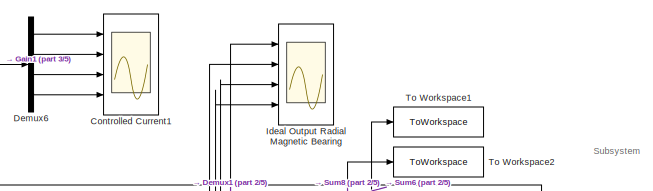
[diagram: root canvas - part 1/5, top center region]
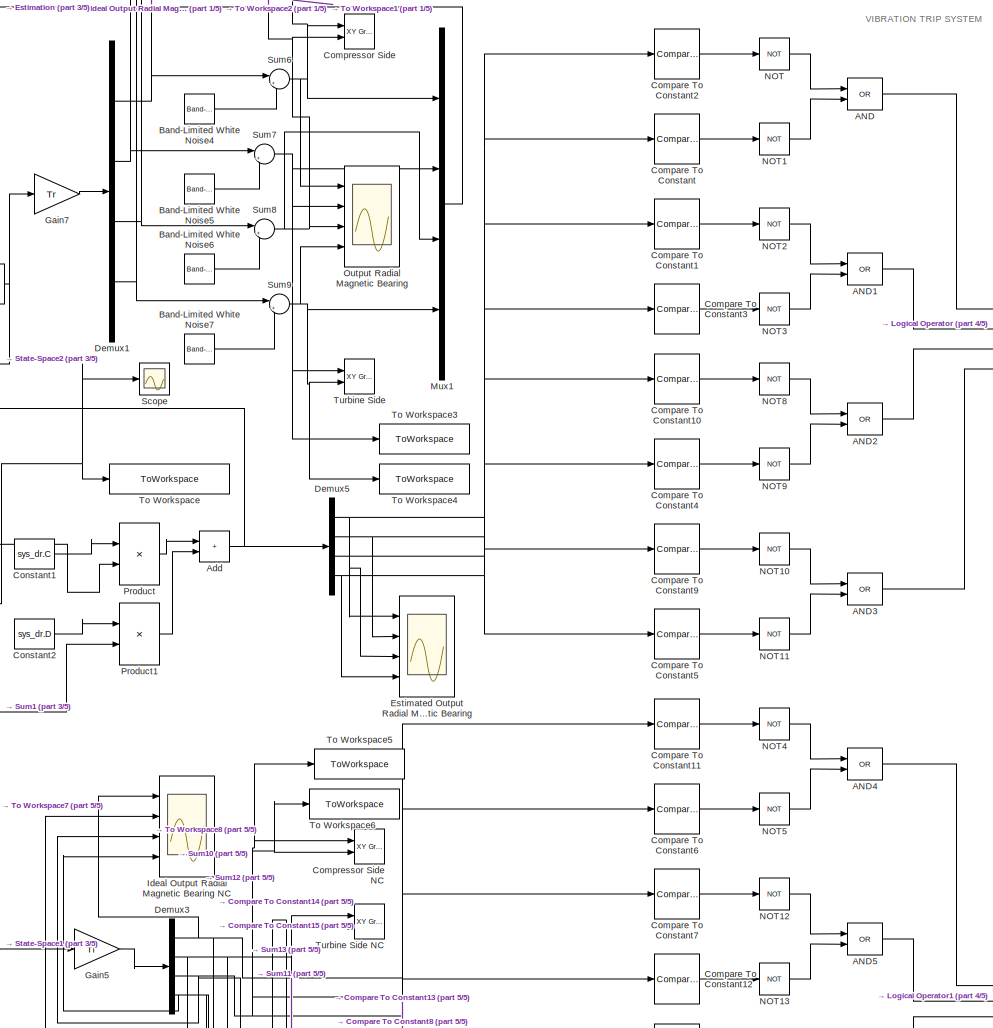
[diagram: root canvas - part 2/5, central region]
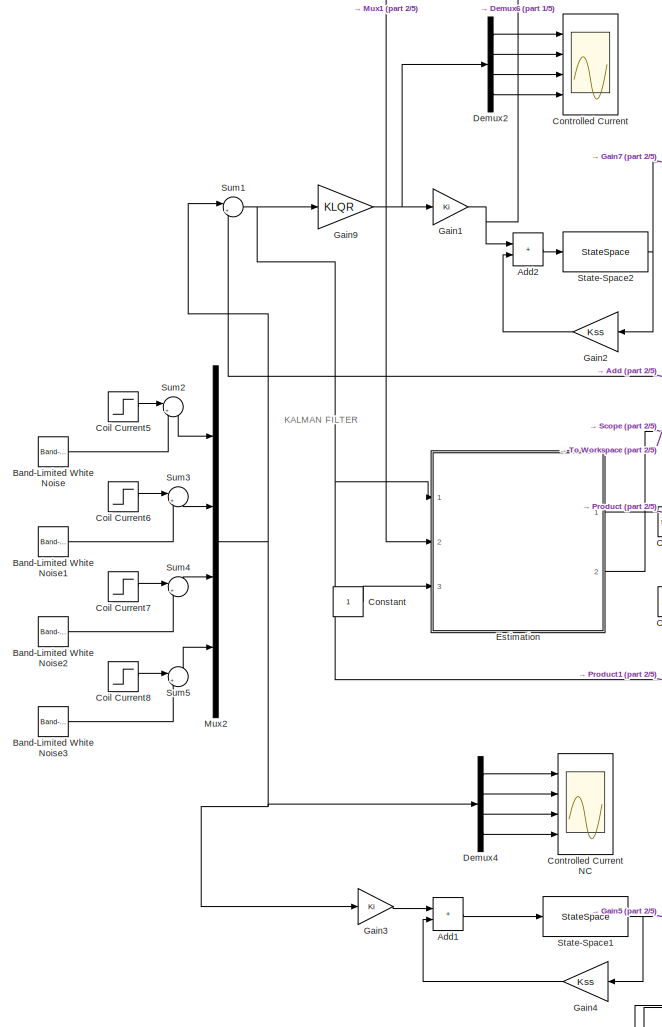
[diagram: root canvas - part 3/5, middle left region]
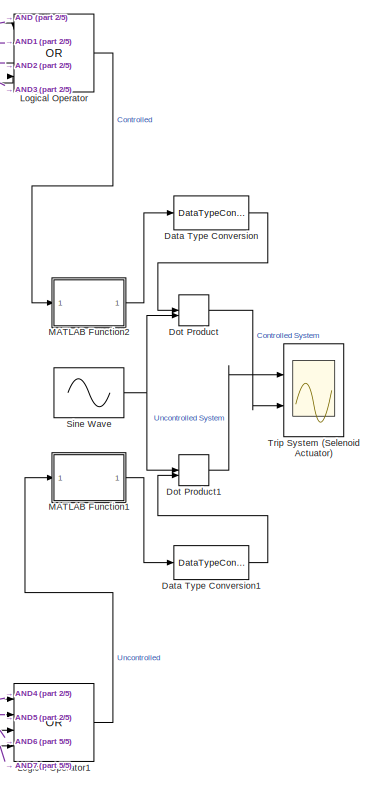
[diagram: root canvas - part 4/5, middle right region]
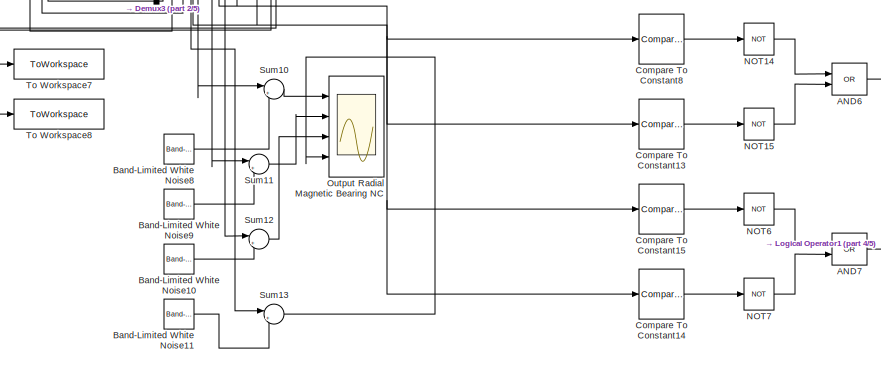
[diagram: root canvas - part 5/5, bottom center region]
MODEL slx_3d02863edbc7
KIND model
CONFIG AbsTol = auto
CONFIG EnableMultiTasking = off
CONFIG FixedStep = auto
CONFIG MaxStep = auto
CONFIG MinStep = auto
CONFIG RelTol = 1e-3
CONFIG SampleTimeConstraint = Unconstrained
CONFIG SolverName = VariableStepAuto
CONFIG StartTime = 0.0
CONFIG StopTime = 5
BLOCK [Logic] AND
  AllPortsSameDT = off
  IconShape = distinctive
  Operator = OR
  OutDataTypeStr = boolean
  Ports = [2, 1]
BLOCK [Logic] AND1
  AllPortsSameDT = off
  IconShape = distinctive
  Operator = OR
  OutDataTypeStr = boolean
  Ports = [2, 1]
BLOCK [Logic] AND2
  AllPortsSameDT = off
  IconShape = distinctive
  Operator = OR
  OutDataTypeStr = boolean
  Ports = [2, 1]
BLOCK [Logic] AND3
  AllPortsSameDT = off
  IconShape = distinctive
  Operator = OR
  OutDataTypeStr = boolean
  Ports = [2, 1]
BLOCK [Logic] AND4
  AllPortsSameDT = off
  IconShape = distinctive
  Operator = OR
  OutDataTypeStr = boolean
  Ports = [2, 1]
BLOCK [Logic] AND5
  AllPortsSameDT = off
  IconShape = distinctive
  Operator = OR
  OutDataTypeStr = boolean
  Ports = [2, 1]
BLOCK [Logic] AND6
  AllPortsSameDT = off
  IconShape = distinctive
  Operator = OR
  OutDataTypeStr = boolean
  Ports = [2, 1]
BLOCK [Logic] AND7
  AllPortsSameDT = off
  IconShape = distinctive
  Operator = OR
  OutDataTypeStr = boolean
  Ports = [2, 1]
BLOCK [Sum] Add
  IconShape = rectangular
  Ports = [2, 1]
BLOCK [Sum] Add1
  IconShape = rectangular
  Ports = [2, 1]
BLOCK [Sum] Add2
  IconShape = rectangular
  Ports = [2, 1]
BLOCK [Reference] Band-Limited White Noise  REF=simulink/Sources/Band-Limited
White Noise
  Ports = [0, 1]
  SourceBlock = simulink/Sources/Band-Limited\nWhite Noise
  SourceProductBaseCode = SL
  SourceType = Band-Limited White Noise.
BLOCK [Reference] Band-Limited White Noise1  REF=simulink/Sources/Band-Limited
White Noise
  Ports = [0, 1]
  SourceBlock = simulink/Sources/Band-Limited\nWhite Noise
  SourceProductBaseCode = SL
  SourceType = Band-Limited White Noise.
BLOCK [Reference] Band-Limited White Noise10  REF=simulink/Sources/Band-Limited
White Noise
  Ports = [0, 1]
  SourceBlock = simulink/Sources/Band-Limited\nWhite Noise
  SourceProductBaseCode = SL
  SourceType = Band-Limited White Noise.
BLOCK [Reference] Band-Limited White Noise11  REF=simulink/Sources/Band-Limited
White Noise
  Ports = [0, 1]
  SourceBlock = simulink/Sources/Band-Limited\nWhite Noise
  SourceProductBaseCode = SL
  SourceType = Band-Limited White Noise.
BLOCK [Reference] Band-Limited White Noise2  REF=simulink/Sources/Band-Limited
White Noise
  Ports = [0, 1]
  SourceBlock = simulink/Sources/Band-Limited\nWhite Noise
  SourceProductBaseCode = SL
  SourceType = Band-Limited White Noise.
BLOCK [Reference] Band-Limited White Noise3  REF=simulink/Sources/Band-Limited
White Noise
  Ports = [0, 1]
  SourceBlock = simulink/Sources/Band-Limited\nWhite Noise
  SourceProductBaseCode = SL
  SourceType = Band-Limited White Noise.
BLOCK [Reference] Band-Limited White Noise4  REF=simulink/Sources/Band-Limited
White Noise
  Ports = [0, 1]
  SourceBlock = simulink/Sources/Band-Limited\nWhite Noise
  SourceProductBaseCode = SL
  SourceType = Band-Limited White Noise.
BLOCK [Reference] Band-Limited White Noise5  REF=simulink/Sources/Band-Limited
White Noise
  Ports = [0, 1]
  SourceBlock = simulink/Sources/Band-Limited\nWhite Noise
  SourceProductBaseCode = SL
  SourceType = Band-Limited White Noise.
BLOCK [Reference] Band-Limited White Noise6  REF=simulink/Sources/Band-Limited
White Noise
  Ports = [0, 1]
  SourceBlock = simulink/Sources/Band-Limited\nWhite Noise
  SourceProductBaseCode = SL
  SourceType = Band-Limited White Noise.
BLOCK [Reference] Band-Limited White Noise7  REF=simulink/Sources/Band-Limited
White Noise
  Ports = [0, 1]
  SourceBlock = simulink/Sources/Band-Limited\nWhite Noise
  SourceProductBaseCode = SL
  SourceType = Band-Limited White Noise.
BLOCK [Reference] Band-Limited White Noise8  REF=simulink/Sources/Band-Limited
White Noise
  Ports = [0, 1]
  SourceBlock = simulink/Sources/Band-Limited\nWhite Noise
  SourceProductBaseCode = SL
  SourceType = Band-Limited White Noise.
BLOCK [Reference] Band-Limited White Noise9  REF=simulink/Sources/Band-Limited
White Noise
  Ports = [0, 1]
  SourceBlock = simulink/Sources/Band-Limited\nWhite Noise
  SourceProductBaseCode = SL
  SourceType = Band-Limited White Noise.
BLOCK [Step] Coil Current5
  After = 10^-9
  SampleTime = 0
BLOCK [Step] Coil Current6
  After = 10^-9
  SampleTime = 0
BLOCK [Step] Coil Current7
  After = 10^-9
  SampleTime = 0
BLOCK [Step] Coil Current8
  After = 10^-9
  SampleTime = 0
  Time = 30
BLOCK [Reference] Compare To Constant  REF=simulink/Logic and Bit
Operations/Compare
To Constant
  Ports = [1, 1]
  SourceBlock = simulink/Logic and Bit\nOperations/Compare\nTo Constant
  SourceProductBaseCode = SL
  SourceType = Compare To Constant
BLOCK [Reference] Compare To Constant1  REF=simulink/Logic and Bit
Operations/Compare
To Constant
  Ports = [1, 1]
  SourceBlock = simulink/Logic and Bit\nOperations/Compare\nTo Constant
  SourceProductBaseCode = SL
  SourceType = Compare To Constant
BLOCK [Reference] Compare To Constant10  REF=simulink/Logic and Bit
Operations/Compare
To Constant
  Ports = [1, 1]
  SourceBlock = simulink/Logic and Bit\nOperations/Compare\nTo Constant
  SourceProductBaseCode = SL
  SourceType = Compare To Constant
BLOCK [Reference] Compare To Constant11  REF=simulink/Logic and Bit
Operations/Compare
To Constant
  Ports = [1, 1]
  SourceBlock = simulink/Logic and Bit\nOperations/Compare\nTo Constant
  SourceProductBaseCode = SL
  SourceType = Compare To Constant
BLOCK [Reference] Compare To Constant12  REF=simulink/Logic and Bit
Operations/Compare
To Constant
  Ports = [1, 1]
  SourceBlock = simulink/Logic and Bit\nOperations/Compare\nTo Constant
  SourceProductBaseCode = SL
  SourceType = Compare To Constant
BLOCK [Reference] Compare To Constant13  REF=simulink/Logic and Bit
Operations/Compare
To Constant
  Ports = [1, 1]
  SourceBlock = simulink/Logic and Bit\nOperations/Compare\nTo Constant
  SourceProductBaseCode = SL
  SourceType = Compare To Constant
BLOCK [Reference] Compare To Constant14  REF=simulink/Logic and Bit
Operations/Compare
To Constant
  Ports = [1, 1]
  SourceBlock = simulink/Logic and Bit\nOperations/Compare\nTo Constant
  SourceProductBaseCode = SL
  SourceType = Compare To Constant
BLOCK [Reference] Compare To Constant15  REF=simulink/Logic and Bit
Operations/Compare
To Constant
  Ports = [1, 1]
  SourceBlock = simulink/Logic and Bit\nOperations/Compare\nTo Constant
  SourceProductBaseCode = SL
  SourceType = Compare To Constant
BLOCK [Reference] Compare To Constant2  REF=simulink/Logic and Bit
Operations/Compare
To Constant
  Ports = [1, 1]
  SourceBlock = simulink/Logic and Bit\nOperations/Compare\nTo Constant
  SourceProductBaseCode = SL
  SourceType = Compare To Constant
BLOCK [Reference] Compare To Constant3  REF=simulink/Logic and Bit
Operations/Compare
To Constant
  Ports = [1, 1]
  SourceBlock = simulink/Logic and Bit\nOperations/Compare\nTo Constant
  SourceProductBaseCode = SL
  SourceType = Compare To Constant
BLOCK [Reference] Compare To Constant4  REF=simulink/Logic and Bit
Operations/Compare
To Constant
  Ports = [1, 1]
  SourceBlock = simulink/Logic and Bit\nOperations/Compare\nTo Constant
  SourceProductBaseCode = SL
  SourceType = Compare To Constant
BLOCK [Reference] Compare To Constant5  REF=simulink/Logic and Bit
Operations/Compare
To Constant
  Ports = [1, 1]
  SourceBlock = simulink/Logic and Bit\nOperations/Compare\nTo Constant
  SourceProductBaseCode = SL
  SourceType = Compare To Constant
BLOCK [Reference] Compare To Constant6  REF=simulink/Logic and Bit
Operations/Compare
To Constant
  Ports = [1, 1]
  SourceBlock = simulink/Logic and Bit\nOperations/Compare\nTo Constant
  SourceProductBaseCode = SL
  SourceType = Compare To Constant
BLOCK [Reference] Compare To Constant7  REF=simulink/Logic and Bit
Operations/Compare
To Constant
  Ports = [1, 1]
  SourceBlock = simulink/Logic and Bit\nOperations/Compare\nTo Constant
  SourceProductBaseCode = SL
  SourceType = Compare To Constant
BLOCK [Reference] Compare To Constant8  REF=simulink/Logic and Bit
Operations/Compare
To Constant
  Ports = [1, 1]
  SourceBlock = simulink/Logic and Bit\nOperations/Compare\nTo Constant
  SourceProductBaseCode = SL
  SourceType = Compare To Constant
BLOCK [Reference] Compare To Constant9  REF=simulink/Logic and Bit
Operations/Compare
To Constant
  Ports = [1, 1]
  SourceBlock = simulink/Logic and Bit\nOperations/Compare\nTo Constant
  SourceProductBaseCode = SL
  SourceType = Compare To Constant
BLOCK [Reference] Compressor Side   REF=simulink/Sinks/XY Graph
  Ports = [2]
  SourceBlock = simulink/Sinks/XY Graph
  SourceProductBaseCode = SL
  SourceType = XY scope.
BLOCK [Reference] Compressor Side NC  REF=simulink/Sinks/XY Graph
  Ports = [2]
  SourceBlock = simulink/Sinks/XY Graph
  SourceProductBaseCode = SL
  SourceType = XY scope.
BLOCK [Constant] Constant
BLOCK [Constant] Constant1
  Value = sys_dr.C
  VectorParams1D = off
BLOCK [Constant] Constant2
  Value = sys_dr.D
  VectorParams1D = off
BLOCK [Scope] Controlled Current
  Floating = off
  NumInputPorts = 4
  Ports = [4]
  ScopeSpecificationString = Simulink.scopes.TimeScopeBlockCfg('CurrentConfiguration', extmgr.ConfigurationSet(extmgr.Configuration('Core','General UI',true),extmgr.Configuration('Core','Source UI',true),extmgr.Configuration('Sources','WiredSimulink',true),extmgr.Configuration('Visuals','Time Domain',true,'SerializedDisplays',{struct('MinYLimReal','-0.22043','MaxYLimReal','0.32246','YLabelReal','','MinYLimMag','0.00000','MaxY...<+3436ch>
BLOCK [Scope] Controlled Current NC
  Floating = off
  NumInputPorts = 4
  Ports = [4]
  ScopeSpecificationString = Simulink.scopes.TimeScopeBlockCfg('CurrentConfiguration', extmgr.ConfigurationSet(extmgr.Configuration('Core','General UI',true),extmgr.Configuration('Core','Source UI',true),extmgr.Configuration('Sources','WiredSimulink',true,'DataLoggingVariableName','ScopeData2'),extmgr.Configuration('Visuals','Time Domain',true,'SerializedDisplays',{struct('MinYLimReal','-1.00134','MaxYLimReal','1.46479','YLab...<+3475ch>
BLOCK [Scope] Controlled Current1
  Floating = off
  NumInputPorts = 4
  Ports = [4]
  ScopeSpecificationString = Simulink.scopes.TimeScopeBlockCfg('CurrentConfiguration', extmgr.ConfigurationSet(extmgr.Configuration('Core','General UI',true),extmgr.Configuration('Core','Source UI',true),extmgr.Configuration('Sources','WiredSimulink',true,'DataLoggingVariableName','ScopeData1'),extmgr.Configuration('Visuals','Time Domain',true,'SerializedDisplays',{struct('MinYLimReal','-127.565','MaxYLimReal','180.94251','YL...<+3488ch>
BLOCK [DataTypeConversion] Data Type Conversion
  RndMeth = Floor
  SaturateOnIntegerOverflow = off
BLOCK [DataTypeConversion] Data Type Conversion1
  RndMeth = Floor
  SaturateOnIntegerOverflow = off
BLOCK [Demux] Demux1
  Ports = [1, 4]
BLOCK [Demux] Demux2
  Ports = [1, 4]
BLOCK [Demux] Demux3
  Ports = [1, 4]
BLOCK [Demux] Demux4
  Ports = [1, 4]
BLOCK [Demux] Demux5
  Ports = [1, 4]
BLOCK [Demux] Demux6
  Ports = [1, 4]
BLOCK [DotProduct] Dot Product
  OutDataTypeStr = Inherit: Inherit via internal rule
BLOCK [DotProduct] Dot Product1
  OutDataTypeStr = Inherit: Inherit via internal rule
BLOCK [Scope] Estimated Output Radial Magnetic Bearing
  Floating = off
  NumInputPorts = 4
  Ports = [4]
  ScopeSpecificationString = Simulink.scopes.TimeScopeBlockCfg('CurrentConfiguration', extmgr.ConfigurationSet(extmgr.Configuration('Core','General UI',true),extmgr.Configuration('Core','Source UI',true),extmgr.Configuration('Sources','WiredSimulink',true,'DataLoggingVariableName','ScopeData5'),extmgr.Configuration('Visuals','Time Domain',true,'SerializedDisplays',{struct('MinYLimReal','-0.0000019','MaxYLimReal','0.0000023','...<+3492ch>
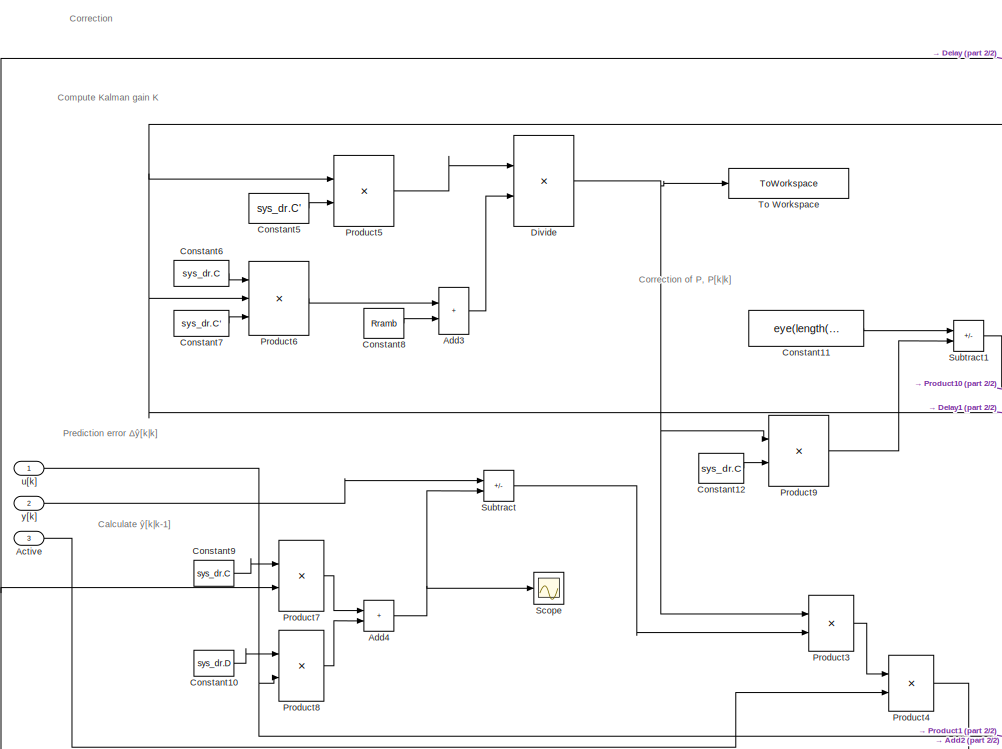
[diagram: Estimation - part 1/2, left side, full height]
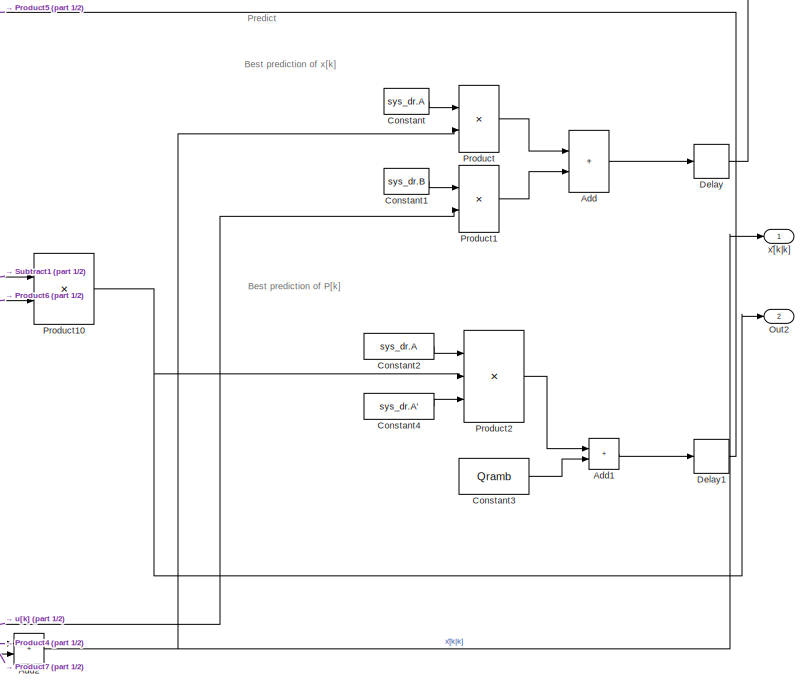
[diagram: Estimation - part 2/2, right side, full height]
BLOCK [SubSystem] Estimation
  Ports = [3, 2]
  RequestExecContextInheritance = off
BLOCK [Inport] Estimation/Active
  Port = 3
BLOCK [Sum] Estimation/Add
  IconShape = rectangular
  Ports = [2, 1]
BLOCK [Sum] Estimation/Add1
  IconShape = rectangular
  Ports = [2, 1]
BLOCK [Sum] Estimation/Add2
  IconShape = rectangular
  Ports = [2, 1]
BLOCK [Sum] Estimation/Add3
  IconShape = rectangular
  Ports = [2, 1]
BLOCK [Sum] Estimation/Add4
  IconShape = rectangular
  Ports = [2, 1]
BLOCK [Constant] Estimation/Constant
  Value = sys_dr.A
  VectorParams1D = off
BLOCK [Constant] Estimation/Constant1
  Value = sys_dr.B
  VectorParams1D = off
BLOCK [Constant] Estimation/Constant10
  Value = sys_dr.D
  VectorParams1D = off
BLOCK [Constant] Estimation/Constant11
  Value = eye(length(sys_dr.C))
  VectorParams1D = off
BLOCK [Constant] Estimation/Constant12
  Value = sys_dr.C
  VectorParams1D = off
BLOCK [Constant] Estimation/Constant2
  Value = sys_dr.A
  VectorParams1D = off
BLOCK [Constant] Estimation/Constant3
  Value = Qramb
  VectorParams1D = off
BLOCK [Constant] Estimation/Constant4
  Value = sys_dr.A'
  VectorParams1D = off
BLOCK [Constant] Estimation/Constant5
  Value = sys_dr.C'
  VectorParams1D = off
BLOCK [Constant] Estimation/Constant6
  Value = sys_dr.C
  VectorParams1D = off
BLOCK [Constant] Estimation/Constant7
  Value = sys_dr.C'
  VectorParams1D = off
BLOCK [Constant] Estimation/Constant8
  Value = Rramb
  VectorParams1D = off
BLOCK [Constant] Estimation/Constant9
  Value = sys_dr.C
  VectorParams1D = off
BLOCK [Delay] Estimation/Delay
  DelayLength = 1
  InitialCondition = x0ramb
  InputPortMap = u0
  Ports = [1, 1]
BLOCK [Delay] Estimation/Delay1
  DelayLength = 1
  InitialCondition = P0ramb
  InputPortMap = u0
  Ports = [1, 1]
BLOCK [Product] Estimation/Divide
  Inputs = */
  Multiplication = Matrix(*)
  Ports = [2, 1]
BLOCK [Outport] Estimation/Out2
  Port = 2
BLOCK [Product] Estimation/Product
  Multiplication = Matrix(*)
  Ports = [2, 1]
BLOCK [Product] Estimation/Product1
  Multiplication = Matrix(*)
  Ports = [2, 1]
BLOCK [Product] Estimation/Product10
  Multiplication = Matrix(*)
  Ports = [2, 1]
BLOCK [Product] Estimation/Product2
  Inputs = 3
  Multiplication = Matrix(*)
  Ports = [3, 1]
BLOCK [Product] Estimation/Product3
  Multiplication = Matrix(*)
  Ports = [2, 1]
BLOCK [Product] Estimation/Product4
  Multiplication = Matrix(*)
  Ports = [2, 1]
BLOCK [Product] Estimation/Product5
  Multiplication = Matrix(*)
  Ports = [2, 1]
BLOCK [Product] Estimation/Product6
  Inputs = 3
  Multiplication = Matrix(*)
  Ports = [3, 1]
BLOCK [Product] Estimation/Product7
  Multiplication = Matrix(*)
  Ports = [2, 1]
BLOCK [Product] Estimation/Product8
  Multiplication = Matrix(*)
  Ports = [2, 1]
BLOCK [Product] Estimation/Product9
  Multiplication = Matrix(*)
  Ports = [2, 1]
BLOCK [Scope] Estimation/Scope
  Floating = off
  NumInputPorts = 1
  Ports = [1]
  ScopeSpecificationString = Simulink.scopes.TimeScopeBlockCfg('CurrentConfiguration', extmgr.ConfigurationSet(extmgr.Configuration('Core','General UI',true),extmgr.Configuration('Core','Source UI',true),extmgr.Configuration('Sources','WiredSimulink',true,'DataLoggingVariableName','ScopeData2'),extmgr.Configuration('Visuals','Time Domain',true,'SerializedDisplays',{struct('MinYLimReal','-244.28559','MaxYLimReal','99.36507','Y...<+1418ch>
BLOCK [Sum] Estimation/Subtract
  IconShape = rectangular
  Inputs = +-
  Ports = [2, 1]
BLOCK [Sum] Estimation/Subtract1
  IconShape = rectangular
  Inputs = +-
  Ports = [2, 1]
BLOCK [ToWorkspace] Estimation/To Workspace
  FixptAsFi = on
  MaxDataPoints = 1
  Ports = [1]
  SampleTime = -1
  VariableName = kalman_gain_rmb
BLOCK [Inport] Estimation/u[k]
BLOCK [Outport] Estimation/x̂[k|k]
BLOCK [Inport] Estimation/y[k]
  Port = 2
BLOCK [Gain] Gain1
  Gain = Ki
  Multiplication = Matrix(K*u)
BLOCK [Gain] Gain2
  Gain = Kss
  Multiplication = Matrix(K*u)
  NameLocation = top
BLOCK [Gain] Gain3
  Gain = Ki
  Multiplication = Matrix(K*u)
BLOCK [Gain] Gain4
  Gain = Kss
  Multiplication = Matrix(K*u)
  NameLocation = top
BLOCK [Gain] Gain5
  Gain = Tr
  Multiplication = Matrix(K*u)
BLOCK [Gain] Gain7
  Gain = Tr
  Multiplication = Matrix(K*u)
BLOCK [Gain] Gain9
  Gain = KLQR
  Multiplication = Matrix(K*u)
BLOCK [Scope] Ideal Output Radial Magnetic Bearing
  Floating = off
  NumInputPorts = 4
  Ports = [4]
  ScopeSpecificationString = Simulink.scopes.TimeScopeBlockCfg('CurrentConfiguration', extmgr.ConfigurationSet(extmgr.Configuration('Core','General UI',true),extmgr.Configuration('Core','Source UI',true),extmgr.Configuration('Sources','WiredSimulink',true,'DataLoggingVariableName','ScopeData1'),extmgr.Configuration('Visuals','Time Domain',true,'SerializedDisplays',{struct('MinYLimReal','-0.0000011','MaxYLimReal','0.0000011','...<+3492ch>
BLOCK [Scope] Ideal Output Radial Magnetic Bearing NC
  Floating = off
  NumInputPorts = 4
  Ports = [4]
  ScopeSpecificationString = Simulink.scopes.TimeScopeBlockCfg('CurrentConfiguration', extmgr.ConfigurationSet(extmgr.Configuration('Core','General UI',true),extmgr.Configuration('Core','Source UI',true),extmgr.Configuration('Sources','WiredSimulink',true,'DataLoggingVariableName','ScopeData2'),extmgr.Configuration('Visuals','Time Domain',true,'SerializedDisplays',{struct('MinYLimReal','-0.00001','MaxYLimReal','0.000011','YLa...<+3484ch>
BLOCK [Logic] Logical Operator
  AllPortsSameDT = off
  IconShape = distinctive
  Inputs = 4
  Operator = OR
  OutDataTypeStr = boolean
  Ports = [4, 1]
BLOCK [Logic] Logical Operator1
  AllPortsSameDT = off
  IconShape = distinctive
  Inputs = 4
  Operator = OR
  OutDataTypeStr = boolean
  Ports = [4, 1]
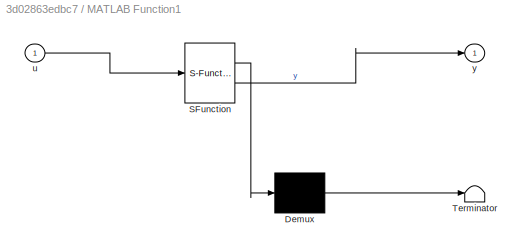
BLOCK [SubSystem] MATLAB Function1
  ErrorFcn = Stateflow.Translate.translate
  PermitHierarchicalResolution = ExplicitOnly
  Ports = [1, 1]
  RequestExecContextInheritance = off
  SFBlockType = MATLAB Function
  TreatAsAtomicUnit = on
BLOCK [Demux] MATLAB Function1/ Demux 
  Outputs = 1
  Ports = [1, 1]
BLOCK [S-Function] MATLAB Function1/ SFunction 
  EnableBusSupport = on
  FunctionName = sf_sfun
  PortCounts = [1 2]
  Ports = [1, 2]
  SFcnIsStateOwnerBlock = off
  SFunctionDeploymentMode = off
  Tag = Stateflow S-Function 1
BLOCK [Terminator] MATLAB Function1/ Terminator 
BLOCK [Inport] MATLAB Function1/u
BLOCK [Outport] MATLAB Function1/y
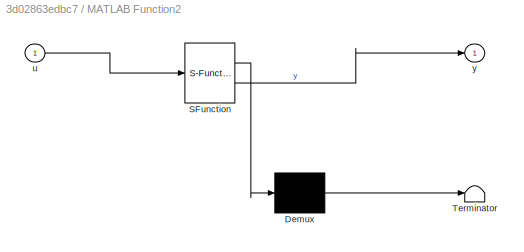
BLOCK [SubSystem] MATLAB Function2
  ErrorFcn = Stateflow.Translate.translate
  PermitHierarchicalResolution = ExplicitOnly
  Ports = [1, 1]
  RequestExecContextInheritance = off
  SFBlockType = MATLAB Function
  TreatAsAtomicUnit = on
BLOCK [Demux] MATLAB Function2/ Demux 
  Outputs = 1
  Ports = [1, 1]
BLOCK [S-Function] MATLAB Function2/ SFunction 
  EnableBusSupport = on
  FunctionName = sf_sfun
  PortCounts = [1 2]
  Ports = [1, 2]
  SFcnIsStateOwnerBlock = off
  SFunctionDeploymentMode = off
  Tag = Stateflow S-Function 2
BLOCK [Terminator] MATLAB Function2/ Terminator 
BLOCK [Inport] MATLAB Function2/u
BLOCK [Outport] MATLAB Function2/y
BLOCK [Mux] Mux1
  DisplayOption = bar
  Ports = [4, 1]
BLOCK [Mux] Mux2
  DisplayOption = bar
  Ports = [4, 1]
BLOCK [Logic] NOT
  AllPortsSameDT = off
  IconShape = distinctive
  Operator = NOT
  OutDataTypeStr = boolean
  Ports = [1, 1]
BLOCK [Logic] NOT1
  AllPortsSameDT = off
  IconShape = distinctive
  Operator = NOT
  OutDataTypeStr = boolean
  Ports = [1, 1]
BLOCK [Logic] NOT10
  AllPortsSameDT = off
  IconShape = distinctive
  Operator = NOT
  OutDataTypeStr = boolean
  Ports = [1, 1]
BLOCK [Logic] NOT11
  AllPortsSameDT = off
  IconShape = distinctive
  Operator = NOT
  OutDataTypeStr = boolean
  Ports = [1, 1]
BLOCK [Logic] NOT12
  AllPortsSameDT = off
  IconShape = distinctive
  Operator = NOT
  OutDataTypeStr = boolean
  Ports = [1, 1]
BLOCK [Logic] NOT13
  AllPortsSameDT = off
  IconShape = distinctive
  Operator = NOT
  OutDataTypeStr = boolean
  Ports = [1, 1]
BLOCK [Logic] NOT14
  AllPortsSameDT = off
  IconShape = distinctive
  Operator = NOT
  OutDataTypeStr = boolean
  Ports = [1, 1]
BLOCK [Logic] NOT15
  AllPortsSameDT = off
  IconShape = distinctive
  Operator = NOT
  OutDataTypeStr = boolean
  Ports = [1, 1]
BLOCK [Logic] NOT2
  AllPortsSameDT = off
  IconShape = distinctive
  Operator = NOT
  OutDataTypeStr = boolean
  Ports = [1, 1]
BLOCK [Logic] NOT3
  AllPortsSameDT = off
  IconShape = distinctive
  Operator = NOT
  OutDataTypeStr = boolean
  Ports = [1, 1]
BLOCK [Logic] NOT4
  AllPortsSameDT = off
  IconShape = distinctive
  Operator = NOT
  OutDataTypeStr = boolean
  Ports = [1, 1]
BLOCK [Logic] NOT5
  AllPortsSameDT = off
  IconShape = distinctive
  Operator = NOT
  OutDataTypeStr = boolean
  Ports = [1, 1]
BLOCK [Logic] NOT6
  AllPortsSameDT = off
  IconShape = distinctive
  Operator = NOT
  OutDataTypeStr = boolean
  Ports = [1, 1]
BLOCK [Logic] NOT7
  AllPortsSameDT = off
  IconShape = distinctive
  Operator = NOT
  OutDataTypeStr = boolean
  Ports = [1, 1]
BLOCK [Logic] NOT8
  AllPortsSameDT = off
  IconShape = distinctive
  Operator = NOT
  OutDataTypeStr = boolean
  Ports = [1, 1]
BLOCK [Logic] NOT9
  AllPortsSameDT = off
  IconShape = distinctive
  Operator = NOT
  OutDataTypeStr = boolean
  Ports = [1, 1]
BLOCK [Scope] Output Radial Magnetic Bearing
  Floating = off
  NumInputPorts = 4
  Ports = [4]
  ScopeSpecificationString = Simulink.scopes.TimeScopeBlockCfg('CurrentConfiguration', extmgr.ConfigurationSet(extmgr.Configuration('Core','General UI',true),extmgr.Configuration('Core','Source UI',true),extmgr.Configuration('Sources','WiredSimulink',true,'DataLoggingVariableName','ScopeData1'),extmgr.Configuration('Visuals','Time Domain',true,'SerializedDisplays',{struct('MinYLimReal','-37773114950855271405149326988140777200...<+3961ch>
BLOCK [Scope] Output Radial Magnetic Bearing NC
  Floating = off
  NumInputPorts = 4
  Ports = [4]
  ScopeSpecificationString = Simulink.scopes.TimeScopeBlockCfg('CurrentConfiguration', extmgr.ConfigurationSet(extmgr.Configuration('Core','General UI',true),extmgr.Configuration('Core','Source UI',true),extmgr.Configuration('Sources','WiredSimulink',true,'DataLoggingVariableName','ScopeData3'),extmgr.Configuration('Visuals','Time Domain',true,'SerializedDisplays',{struct('MinYLimReal','-0.00011','MaxYLimReal','0.00011','YLab...<+3463ch>
BLOCK [Product] Product
  Multiplication = Matrix(*)
  Ports = [2, 1]
BLOCK [Product] Product1
  Multiplication = Matrix(*)
  Ports = [2, 1]
BLOCK [Scope] Scope
  Floating = off
  NumInputPorts = 1
  Ports = [1]
  ScopeSpecificationString = Simulink.scopes.TimeScopeBlockCfg('CurrentConfiguration', extmgr.ConfigurationSet(extmgr.Configuration('Core','General UI',true),extmgr.Configuration('Core','Source UI',true),extmgr.Configuration('Sources','WiredSimulink',true,'DataLoggingVariableName','ScopeData3'),extmgr.Configuration('Visuals','Time Domain',true,'SerializedDisplays',{struct('MinYLimReal','-12.5','MaxYLimReal','112.5','YLabelRea...<+2513ch>
BLOCK [Sin] Sine Wave
  Amplitude = 220
  Frequency = 60
  Ports = [0, 1]
  SampleTime = 0
BLOCK [StateSpace] State-Space1
  A = Ar
  B = Br
  C = Cr
  D = Dr
  InitialCondition = 0
  Ports = [1, 1]
BLOCK [StateSpace] State-Space2
  A = sys_dr.A
  B = sys_dr.B
  C = sys_dr.C
  ContinuousStateAttributes = 'posisition'
  D = sys_dr.D
  InitialCondition = 10^-7*[1 1 1 1 1 1 1 1]
  Ports = [1, 1]
BLOCK [Sum] Sum1
  Inputs = |+-
  Ports = [2, 1]
BLOCK [Sum] Sum10
  Inputs = |+-
  Ports = [2, 1]
BLOCK [Sum] Sum11
  Inputs = |+-
  Ports = [2, 1]
BLOCK [Sum] Sum12
  Inputs = |+-
  Ports = [2, 1]
BLOCK [Sum] Sum13
  Inputs = |+-
  Ports = [2, 1]
BLOCK [Sum] Sum2
  Inputs = |+-
  Ports = [2, 1]
BLOCK [Sum] Sum3
  Inputs = |+-
  Ports = [2, 1]
BLOCK [Sum] Sum4
  Inputs = |+-
  Ports = [2, 1]
BLOCK [Sum] Sum5
  Inputs = |+-
  Ports = [2, 1]
BLOCK [Sum] Sum6
  Inputs = |+-
  Ports = [2, 1]
BLOCK [Sum] Sum7
  Inputs = |+-
  Ports = [2, 1]
BLOCK [Sum] Sum8
  Inputs = |+-
  Ports = [2, 1]
BLOCK [Sum] Sum9
  Inputs = |+-
  Ports = [2, 1]
BLOCK [ToWorkspace] To Workspace
  FixptAsFi = on
  MaxDataPoints = 1
  Ports = [1]
  SampleTime = -1
  VariableName = system_variance_ramb
BLOCK [ToWorkspace] To Workspace1
  FixptAsFi = on
  MaxDataPoints = inf
  Ports = [1]
  SampleTime = -1
  SaveFormat = Timeseries
  VariableName = xc
BLOCK [ToWorkspace] To Workspace2
  FixptAsFi = on
  MaxDataPoints = inf
  Ports = [1]
  SampleTime = -1
  SaveFormat = Timeseries
  VariableName = yc
BLOCK [ToWorkspace] To Workspace3
  FixptAsFi = on
  MaxDataPoints = inf
  Ports = [1]
  SampleTime = -1
  SaveFormat = Timeseries
  VariableName = xt
BLOCK [ToWorkspace] To Workspace4
  FixptAsFi = on
  MaxDataPoints = inf
  Ports = [1]
  SampleTime = -1
  SaveFormat = Timeseries
  VariableName = yt
BLOCK [ToWorkspace] To Workspace5
  FixptAsFi = on
  MaxDataPoints = inf
  Ports = [1]
  SampleTime = -1
  SaveFormat = Timeseries
  VariableName = xcnc
BLOCK [ToWorkspace] To Workspace6
  FixptAsFi = on
  MaxDataPoints = inf
  Ports = [1]
  SampleTime = -1
  SaveFormat = Timeseries
  VariableName = ycnc
BLOCK [ToWorkspace] To Workspace7
  FixptAsFi = on
  MaxDataPoints = inf
  Ports = [1]
  SampleTime = -1
  SaveFormat = Timeseries
  VariableName = xtnc
BLOCK [ToWorkspace] To Workspace8
  FixptAsFi = on
  MaxDataPoints = inf
  Ports = [1]
  SampleTime = -1
  SaveFormat = Timeseries
  VariableName = ytnc
BLOCK [Scope] Trip System (Selenoid Actuator)
  Floating = off
  NumInputPorts = 2
  Ports = [2]
  ScopeSpecificationString = Simulink.scopes.TimeScopeBlockCfg('CurrentConfiguration', extmgr.ConfigurationSet(extmgr.Configuration('Core','General UI',true),extmgr.Configuration('Core','Source UI',true),extmgr.Configuration('Sources','WiredSimulink',true,'DataLoggingVariableName','ScopeData1'),extmgr.Configuration('Visuals','Time Domain',true,'SerializedDisplays',{struct('MinYLimReal','-274.99994','MaxYLimReal','274.99998','...<+2097ch>
BLOCK [Reference] Turbine Side  REF=simulink/Sinks/XY Graph
  Ports = [2]
  SourceBlock = simulink/Sinks/XY Graph
  SourceProductBaseCode = SL
  SourceType = XY scope.
BLOCK [Reference] Turbine Side NC  REF=simulink/Sinks/XY Graph
  Ports = [2]
  SourceBlock = simulink/Sinks/XY Graph
  SourceProductBaseCode = SL
  SourceType = XY scope.
ANNOTATION (root): VIBRATION TRIP SYSTEM
ANNOTATION (root): KALMAN FILTER
ANNOTATION (root): Subsystem
ANNOTATION Estimation: Best prediction of P[k]
ANNOTATION Estimation: Best prediction of x[k]
ANNOTATION Estimation: Calculate ŷ[k|k-1]
ANNOTATION Estimation: Compute Kalman gain K
ANNOTATION Estimation: Correction
ANNOTATION Estimation: Correction of P, P[k|k]
ANNOTATION Estimation: Predict
ANNOTATION Estimation: Prediction error Δŷ[k|k]
LINE AND1:1 -> Logical Operator:2
LINE AND2:1 -> Logical Operator:3
LINE AND3:1 -> Logical Operator:4
LINE AND4:1 -> Logical Operator1:1
LINE AND5:1 -> Logical Operator1:2
LINE AND6:1 -> Logical Operator1:3
LINE AND7:1 -> Logical Operator1:4
LINE AND:1 -> Logical Operator:1
LINE Add1:1 -> State-Space1:1
LINE Add2:1 -> State-Space2:1
NET Add:1 -> Demux5:1, Sum1:2
LINE Band-Limited White Noise10:1 -> Sum12:2
LINE Band-Limited White Noise11:1 -> Sum13:2
LINE Band-Limited White Noise1:1 -> Sum3:2
LINE Band-Limited White Noise2:1 -> Sum4:2
LINE Band-Limited White Noise3:1 -> Sum5:2
LINE Band-Limited White Noise4:1 -> Sum6:2
LINE Band-Limited White Noise5:1 -> Sum7:2
LINE Band-Limited White Noise6:1 -> Sum8:2
LINE Band-Limited White Noise7:1 -> Sum9:2
LINE Band-Limited White Noise8:1 -> Sum10:2
LINE Band-Limited White Noise9:1 -> Sum11:2
LINE Band-Limited White Noise:1 -> Sum2:2
LINE Coil Current5:1 -> Sum2:1
LINE Coil Current6:1 -> Sum3:1
LINE Coil Current7:1 -> Sum4:1
LINE Coil Current8:1 -> Sum5:1
LINE Compare To Constant10:1 -> NOT8:1
LINE Compare To Constant11:1 -> NOT4:1
LINE Compare To Constant12:1 -> NOT13:1
LINE Compare To Constant13:1 -> NOT15:1
LINE Compare To Constant14:1 -> NOT7:1
LINE Compare To Constant15:1 -> NOT6:1
LINE Compare To Constant1:1 -> NOT2:1
LINE Compare To Constant2:1 -> NOT:1
LINE Compare To Constant3:1 -> NOT3:1
LINE Compare To Constant4:1 -> NOT9:1
LINE Compare To Constant5:1 -> NOT11:1
LINE Compare To Constant6:1 -> NOT5:1
LINE Compare To Constant7:1 -> NOT12:1
LINE Compare To Constant8:1 -> NOT14:1
LINE Compare To Constant9:1 -> NOT10:1
LINE Compare To Constant:1 -> NOT1:1
LINE Constant1:1 -> Product:1
LINE Constant2:1 -> Product1:1
LINE Constant:1 -> Estimation:3
LINE Data Type Conversion1:1 -> Dot Product1:2
LINE Data Type Conversion:1 -> Dot Product:1
NET Demux1:1 -> Ideal Output Radial Magnetic Bearing:1, Sum6:1
NET Demux1:2 -> Ideal Output Radial Magnetic Bearing:2, Sum7:1
NET Demux1:3 -> Ideal Output Radial Magnetic Bearing:3, Sum8:1
NET Demux1:4 -> Ideal Output Radial Magnetic Bearing:4, Sum9:1
LINE Demux2:1 -> Controlled Current:1
LINE Demux2:2 -> Controlled Current:2
LINE Demux2:3 -> Controlled Current:3
LINE Demux2:4 -> Controlled Current:4
NET Demux3:1 -> Compare To Constant11:1, Compare To Constant6:1, Compressor Side NC:1, Ideal Output Radial Magnetic Bearing NC:1, Sum10:1, To Workspace5:1
NET Demux3:2 -> Compare To Constant12:1, Compare To Constant7:1, Ideal Output Radial Magnetic Bearing NC:2, Sum11:1, To Workspace7:1, Turbine Side NC:1
NET Demux3:3 -> Compare To Constant13:1, Compare To Constant8:1, Compressor Side NC:2, Ideal Output Radial Magnetic Bearing NC:3, Sum12:1, To Workspace6:1
NET Demux3:4 -> Compare To Constant14:1, Compare To Constant15:1, Ideal Output Radial Magnetic Bearing NC:4, Sum13:1, To Workspace8:1, Turbine Side NC:2
LINE Demux4:1 -> Controlled Current NC:1
LINE Demux4:2 -> Controlled Current NC:2
LINE Demux4:3 -> Controlled Current NC:3
LINE Demux4:4 -> Controlled Current NC:4
NET Demux5:1 -> Compare To Constant2:1, Compare To Constant:1, Estimated Output Radial Magnetic Bearing:1
NET Demux5:2 -> Compare To Constant1:1, Compare To Constant3:1, Estimated Output Radial Magnetic Bearing:2
NET Demux5:3 -> Compare To Constant10:1, Compare To Constant4:1, Estimated Output Radial Magnetic Bearing:3
NET Demux5:4 -> Compare To Constant5:1, Compare To Constant9:1, Estimated Output Radial Magnetic Bearing:4
LINE Demux6:1 -> Controlled Current1:1
LINE Demux6:2 -> Controlled Current1:2
LINE Demux6:3 -> Controlled Current1:3
LINE Demux6:4 -> Controlled Current1:4
LINE Dot Product1:1 -> Trip System (Selenoid Actuator):1
LINE Dot Product:1 -> Trip System (Selenoid Actuator):2
LINE Estimation/Active:1 -> Estimation/Product4:2
LINE Estimation/Add1:1 -> Estimation/Delay1:1
NET Estimation/Add2:1 -> Estimation/Product:2, Estimation/x̂[k|k]:1
LINE Estimation/Add3:1 -> Estimation/Divide:2
NET Estimation/Add4:1 -> Estimation/Scope:1, Estimation/Subtract:2
LINE Estimation/Add:1 -> Estimation/Delay:1
LINE Estimation/Constant10:1 -> Estimation/Product8:1
LINE Estimation/Constant11:1 -> Estimation/Subtract1:1
LINE Estimation/Constant12:1 -> Estimation/Product9:2
LINE Estimation/Constant1:1 -> Estimation/Product1:1
LINE Estimation/Constant2:1 -> Estimation/Product2:1
LINE Estimation/Constant3:1 -> Estimation/Add1:2
LINE Estimation/Constant4:1 -> Estimation/Product2:3
LINE Estimation/Constant5:1 -> Estimation/Product5:2
LINE Estimation/Constant6:1 -> Estimation/Product6:1
LINE Estimation/Constant7:1 -> Estimation/Product6:3
LINE Estimation/Constant8:1 -> Estimation/Add3:2
LINE Estimation/Constant9:1 -> Estimation/Product7:1
LINE Estimation/Constant:1 -> Estimation/Product:1
NET Estimation/Delay1:1 -> Estimation/Product10:2, Estimation/Product5:1, Estimation/Product6:2
NET Estimation/Delay:1 -> Estimation/Add2:2, Estimation/Product7:2
NET Estimation/Divide:1 -> Estimation/Product3:1, Estimation/Product9:1, Estimation/To Workspace:1
NET Estimation/Product10:1 -> Estimation/Out2:1, Estimation/Product2:2
LINE Estimation/Product1:1 -> Estimation/Add:2
LINE Estimation/Product2:1 -> Estimation/Add1:1
LINE Estimation/Product3:1 -> Estimation/Product4:1
LINE Estimation/Product4:1 -> Estimation/Add2:1
LINE Estimation/Product5:1 -> Estimation/Divide:1
LINE Estimation/Product6:1 -> Estimation/Add3:1
LINE Estimation/Product7:1 -> Estimation/Add4:1
LINE Estimation/Product8:1 -> Estimation/Add4:2
LINE Estimation/Product9:1 -> Estimation/Subtract1:2
LINE Estimation/Product:1 -> Estimation/Add:1
LINE Estimation/Subtract1:1 -> Estimation/Product10:1
LINE Estimation/Subtract:1 -> Estimation/Product3:2
NET Estimation/u[k]:1 -> Estimation/Product1:2, Estimation/Product8:2
LINE Estimation/y[k]:1 -> Estimation/Subtract:1
LINE Estimation:1 -> Product:2
NET Estimation:2 -> Scope:1, To Workspace:1
NET Gain1:1 -> Add2:1, Demux6:1
LINE Gain2:1 -> Add2:2
LINE Gain3:1 -> Add1:1
LINE Gain4:1 -> Add1:2
LINE Gain5:1 -> Demux3:1
LINE Gain7:1 -> Demux1:1
NET Gain9:1 -> Demux2:1, Gain1:1
LINE Logical Operator1:1 -> MATLAB Function1:1
LINE Logical Operator:1 -> MATLAB Function2:1
LINE MATLAB Function1:1 -> Data Type Conversion1:1
LINE MATLAB Function2:1 -> Data Type Conversion:1
LINE Mux1:1 -> Estimation:2
NET Mux2:1 -> Demux4:1, Gain3:1, Sum1:1
LINE NOT10:1 -> AND3:1
LINE NOT11:1 -> AND3:2
LINE NOT12:1 -> AND5:1
LINE NOT13:1 -> AND5:2
LINE NOT14:1 -> AND6:1
LINE NOT15:1 -> AND6:2
LINE NOT1:1 -> AND:2
LINE NOT2:1 -> AND1:1
LINE NOT3:1 -> AND1:2
LINE NOT4:1 -> AND4:1
LINE NOT5:1 -> AND4:2
LINE NOT6:1 -> AND7:1
LINE NOT7:1 -> AND7:2
LINE NOT8:1 -> AND2:1
LINE NOT9:1 -> AND2:2
LINE NOT:1 -> AND:1
LINE Product1:1 -> Add:2
LINE Product:1 -> Add:1
NET Sine Wave:1 -> Dot Product1:1, Dot Product:2
NET State-Space1:1 -> Gain4:1, Gain5:1
NET State-Space2:1 -> Gain2:1, Gain7:1
LINE Sum10:1 -> Output Radial Magnetic Bearing NC:1
LINE Sum11:1 -> Output Radial Magnetic Bearing NC:2
LINE Sum12:1 -> Output Radial Magnetic Bearing NC:3
LINE Sum13:1 -> Output Radial Magnetic Bearing NC:4
NET Sum1:1 -> Estimation:1, Gain9:1, Product1:2
LINE Sum2:1 -> Mux2:1
LINE Sum3:1 -> Mux2:2
LINE Sum4:1 -> Mux2:3
LINE Sum5:1 -> Mux2:4
NET Sum6:1 -> Compressor Side :1, Mux1:1, Output Radial Magnetic Bearing:1, To Workspace1:1
NET Sum7:1 -> Mux1:2, Output Radial Magnetic Bearing:2, To Workspace3:1, Turbine Side:1
NET Sum8:1 -> Compressor Side :2, Mux1:3, Output Radial Magnetic Bearing:3, To Workspace2:1
NET Sum9:1 -> Mux1:4, Output Radial Magnetic Bearing:4, To Workspace4:1, Turbine Side:2
note: NET lines group one-source signal fan-out (src -> all destinations, sorted); 1:1 wires keep LINE
CHART MATLAB Function2 states=1 transitions=1
  STATE_LABEL 'eML_blk_kernel()'
  STATE_LABEL 'SCRIPT:\n%MEALY FINITE STATE MACHINE\nfunction y = TRIP(u)\nif(u==0)\n    u=false;\nelse\n    u=true\nend\n\nS1=0;\nS2=1;\npersistent state;\nif isempty(state)\n    state=S1;\nend\n\nswitch(state)\n    case S1,\n        if(u==false)\n            y=false;\n            state=S1;\n        else\n            y=true;\n            state=S2;\n        end\n        \n    case S2,\n        if(u==false)\n            y=true;\n            ...<+144ch>'
CHART MATLAB Function1 states=1 transitions=1
  STATE_LABEL 'eML_blk_kernel()'
  STATE_LABEL 'SCRIPT:\nfunction y = TRIP(u)\nif(u==0)\n    u=false;\nelse\n    u=true\nend\n\nS1=0;\nS2=1;\npersistent state;\nif isempty(state)\n    state=S1;\nend\n\nswitch(state)\n    case S1,\n        if(u==false)\n            y=false;\n            state=S1;\n        else\n            y=true;\n            state=S2;\n        end\n        \n    case S2,\n        if(u==false)\n            y=true;\n            state=S2;\n        else\n     ...<+116ch>'
CHART  states=0 transitions=0
CHART  states=0 transitions=0
